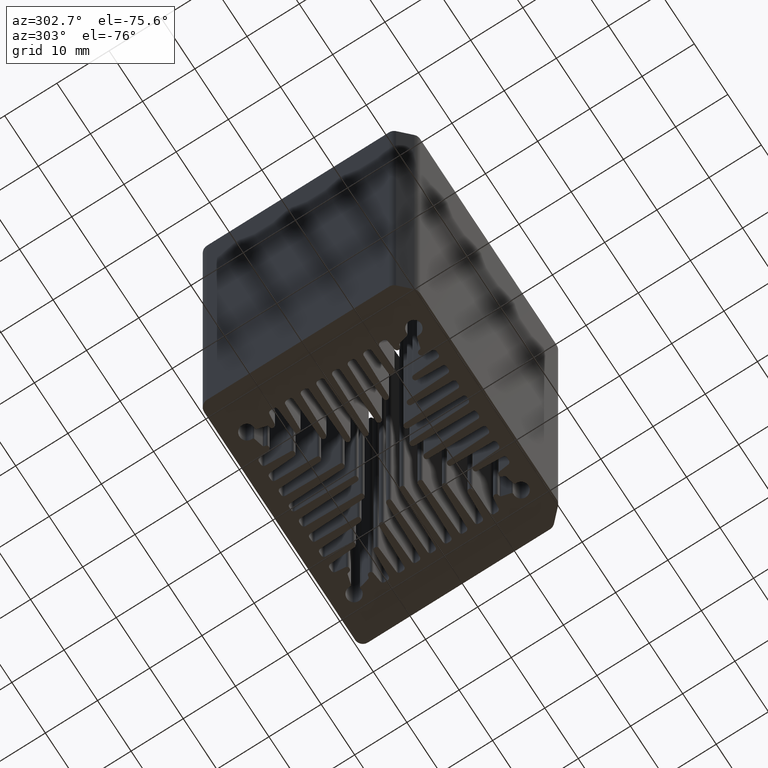
[diagram: clean part render]
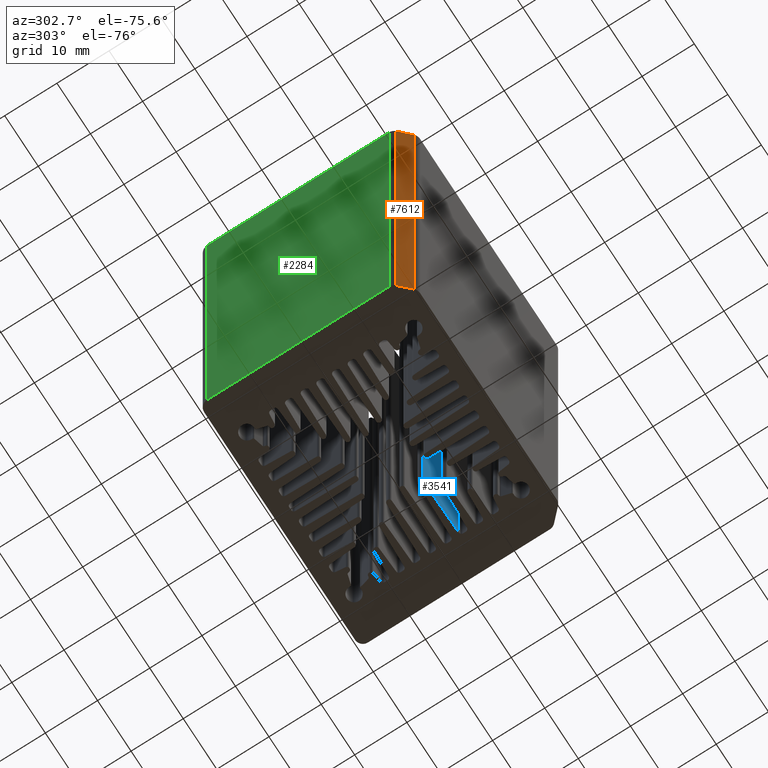
[diagram: same view with three faces highlighted in distinct colors, each labeled with its STEP entity id]
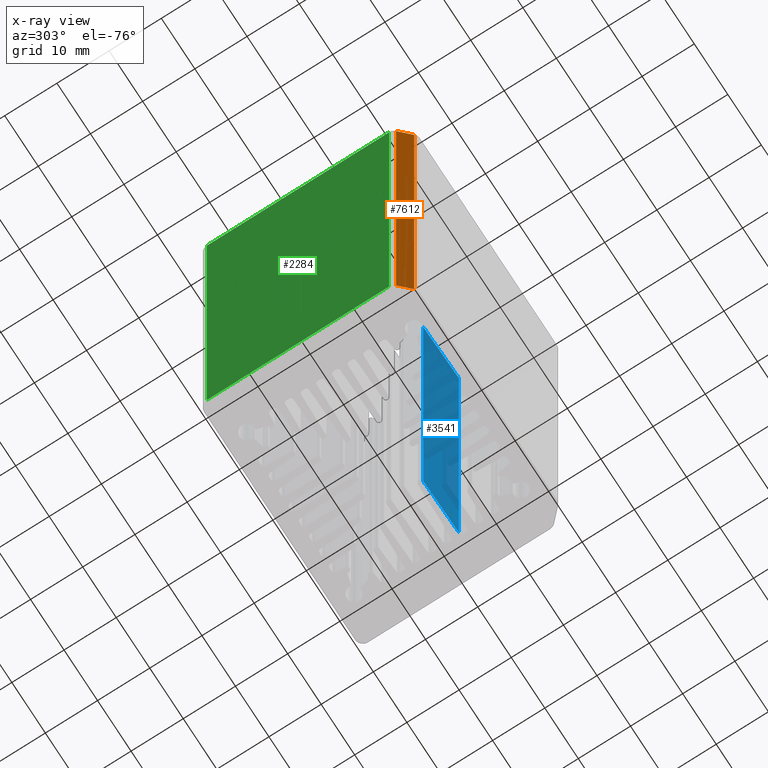
[diagram: x-ray of the same camera — body ghosted, the three highlighted faces saturated]
A machine part, auxiliary view with three faces highlighted in distinct colors.
The next image is the same camera in x-ray (body ghosted, the three faces saturated) — at least one of them is partly hidden behind the body in this view.
Their STEP definitions:

[orange] entity #7612 — the highlighted planar face has unit normal (0.7071, 0.7071, -0).
#319 = CARTESIAN_POINT ( 'NONE',  ( 500.3566337589029445, 690.2941642547954189, 100.0000000000000000 ) ) ;
#683 = VECTOR ( 'NONE', #7853, 1000.000000000000114 ) ;
#1219 = CARTESIAN_POINT ( 'NONE',  ( 498.2353139594253548, 692.4154846731078123, 100.0000000000000000 ) ) ;
#1271 = ORIENTED_EDGE ( 'NONE', *, *, #6582, .T. ) ;
#1556 = EDGE_LOOP ( 'NONE', ( #1271, #5997, #3060, #7929 ) ) ;
#1578 = FACE_OUTER_BOUND ( 'NONE', #1556, .T. ) ;
#1799 = VECTOR ( 'NONE', #8674, 1000.000000000000000 ) ;
#1834 = LINE ( 'NONE', #6057, #5011 ) ;
#1924 = EDGE_CURVE ( 'NONE', #2748, #4405, #1834, .T. ) ;
#1963 = CARTESIAN_POINT ( 'NONE',  ( 498.2353139594253548, 692.4154846731078123, 0.000000000000000000 ) ) ;
#2262 = CARTESIAN_POINT ( 'NONE',  ( 498.2353139594253548, 692.4154846731078123, 0.000000000000000000 ) ) ;
#2489 = PLANE ( 'NONE',  #7844 ) ;
#2748 = VERTEX_POINT ( 'NONE', #4436 ) ;
#3060 = ORIENTED_EDGE ( 'NONE', *, *, #3605, .F. ) ;
#3605 = EDGE_CURVE ( 'NONE', #2748, #7429, #7373, .T. ) ;
#3713 = CARTESIAN_POINT ( 'NONE',  ( 500.3566337589029445, 690.2941642547954189, 100.0000000000000000 ) ) ;
#4159 = CARTESIAN_POINT ( 'NONE',  ( 500.3566337589029445, 690.2941642547954189, 0.000000000000000000 ) ) ;
#4405 = VERTEX_POINT ( 'NONE', #1963 ) ;
#4436 = CARTESIAN_POINT ( 'NONE',  ( 498.2353139594253548, 692.4154846731078123, 100.0000000000000000 ) ) ;
#4587 = DIRECTION ( 'NONE',  ( 0.7071066780474017932, -0.7071068843256781422, 0.000000000000000000 ) ) ;
#4650 = DIRECTION ( 'NONE',  ( -0.000000000000000000, -0.000000000000000000, -1.000000000000000000 ) ) ;
#5011 = VECTOR ( 'NONE', #4650, 1000.000000000000000 ) ;
#5035 = CARTESIAN_POINT ( 'NONE',  ( 498.2353139594253548, 692.4154846731078123, 100.0000000000000000 ) ) ;
#5974 = DIRECTION ( 'NONE',  ( -0.7071066780474017932, 0.7071068843256781422, 0.000000000000000000 ) ) ;
#5997 = ORIENTED_EDGE ( 'NONE', *, *, #7035, .F. ) ;
#6057 = CARTESIAN_POINT ( 'NONE',  ( 498.2353139594253548, 692.4154846731078123, 100.0000000000000000 ) ) ;
#6582 = EDGE_CURVE ( 'NONE', #4405, #9068, #8729, .T. ) ;
#6606 = LINE ( 'NONE', #319, #1799 ) ;
#7035 = EDGE_CURVE ( 'NONE', #7429, #9068, #6606, .T. ) ;
#7081 = VECTOR ( 'NONE', #4587, 1000.000000000000114 ) ;
#7373 = LINE ( 'NONE', #1219, #7081 ) ;
#7429 = VERTEX_POINT ( 'NONE', #3713 ) ;
#7612 = ADVANCED_FACE ( 'NONE', ( #1578 ), #2489, .F. ) ;
#7844 = AXIS2_PLACEMENT_3D ( 'NONE', #5035, #8861, #5974 ) ;
#7853 = DIRECTION ( 'NONE',  ( 0.7071066780474017932, -0.7071068843256781422, 0.000000000000000000 ) ) ;
#7929 = ORIENTED_EDGE ( 'NONE', *, *, #1924, .T. ) ;
#8674 = DIRECTION ( 'NONE',  ( -0.000000000000000000, -0.000000000000000000, -1.000000000000000000 ) ) ;
#8729 = LINE ( 'NONE', #2262, #683 ) ;
#8861 = DIRECTION ( 'NONE',  ( 0.7071068843256781422, 0.7071066780474017932, -0.000000000000000000 ) ) ;
#9068 = VERTEX_POINT ( 'NONE', #4159 ) ;

[blue] entity #3541 — the highlighted planar face has unit normal (-0.0232, -0.9997, 0).
#666 = ORIENTED_EDGE ( 'NONE', *, *, #2978, .F. ) ;
#687 = CARTESIAN_POINT ( 'NONE',  ( 528.0180926985538008, 706.3549578145843952, 100.0000000000000000 ) ) ;
#814 = CARTESIAN_POINT ( 'NONE',  ( 528.0180926985538008, 706.3549578145843952, 100.0000000000000000 ) ) ;
#856 = VERTEX_POINT ( 'NONE', #1430 ) ;
#1216 = EDGE_LOOP ( 'NONE', ( #1245, #666, #4204, #7205 ) ) ;
#1245 = ORIENTED_EDGE ( 'NONE', *, *, #2878, .F. ) ;
#1297 = LINE ( 'NONE', #9000, #3320 ) ;
#1408 = VERTEX_POINT ( 'NONE', #6556 ) ;
#1430 = CARTESIAN_POINT ( 'NONE',  ( 538.3075767525135689, 706.1161586681045037, 0.000000000000000000 ) ) ;
#1684 = DIRECTION ( 'NONE',  ( 0.9997308013032757401, -0.02320183021897528897, 0.000000000000000000 ) ) ;
#2020 = CARTESIAN_POINT ( 'NONE',  ( 528.0180926985538008, 706.3549578145843952, 0.000000000000000000 ) ) ;
#2630 = LINE ( 'NONE', #5425, #3085 ) ;
#2878 = EDGE_CURVE ( 'NONE', #856, #4285, #2630, .T. ) ;
#2978 = EDGE_CURVE ( 'NONE', #1408, #856, #7661, .T. ) ;
#3085 = VECTOR ( 'NONE', #4747, 1000.000000000000000 ) ;
#3320 = VECTOR ( 'NONE', #7585, 1000.000000000000000 ) ;
#3528 = VECTOR ( 'NONE', #4982, 1000.000000000000000 ) ;
#3541 = ADVANCED_FACE ( 'NONE', ( #7926 ), #5729, .T. ) ;
#3627 = DIRECTION ( 'NONE',  ( -0.02320183021897528897, -0.9997308013032757401, 0.000000000000000000 ) ) ;
#4204 = ORIENTED_EDGE ( 'NONE', *, *, #8195, .T. ) ;
#4285 = VERTEX_POINT ( 'NONE', #2020 ) ;
#4747 = DIRECTION ( 'NONE',  ( -0.9997308013032757401, 0.02320183021897528897, -0.000000000000000000 ) ) ;
#4982 = DIRECTION ( 'NONE',  ( -0.000000000000000000, -0.000000000000000000, -1.000000000000000000 ) ) ;
#5425 = CARTESIAN_POINT ( 'NONE',  ( 528.0180926985538008, 706.3549578145843952, 0.000000000000000000 ) ) ;
#5555 = CARTESIAN_POINT ( 'NONE',  ( 538.3075767525135689, 706.1161586681045037, 100.0000000000000000 ) ) ;
#5729 = PLANE ( 'NONE',  #5773 ) ;
#5773 = AXIS2_PLACEMENT_3D ( 'NONE', #814, #3627, #1684 ) ;
#5923 = CARTESIAN_POINT ( 'NONE',  ( 528.0180926985538008, 706.3549578145843952, 100.0000000000000000 ) ) ;
#6233 = LINE ( 'NONE', #687, #8150 ) ;
#6556 = CARTESIAN_POINT ( 'NONE',  ( 538.3075767525135689, 706.1161586681045037, 100.0000000000000000 ) ) ;
#7205 = ORIENTED_EDGE ( 'NONE', *, *, #7801, .T. ) ;
#7575 = DIRECTION ( 'NONE',  ( -0.9997308013032757401, 0.02320183021897528897, -0.000000000000000000 ) ) ;
#7585 = DIRECTION ( 'NONE',  ( -0.000000000000000000, -0.000000000000000000, -1.000000000000000000 ) ) ;
#7661 = LINE ( 'NONE', #5555, #3528 ) ;
#7734 = VERTEX_POINT ( 'NONE', #5923 ) ;
#7801 = EDGE_CURVE ( 'NONE', #7734, #4285, #1297, .T. ) ;
#7926 = FACE_OUTER_BOUND ( 'NONE', #1216, .T. ) ;
#8150 = VECTOR ( 'NONE', #7575, 1000.000000000000000 ) ;
#8195 = EDGE_CURVE ( 'NONE', #1408, #7734, #6233, .T. ) ;
#9000 = CARTESIAN_POINT ( 'NONE',  ( 528.0180926985538008, 706.3549578145843952, 100.0000000000000000 ) ) ;

[green] entity #2284 — the highlighted planar face has unit normal (1, -0, 0).
#56 = EDGE_CURVE ( 'NONE', #5829, #5399, #7093, .T. ) ;
#575 = DIRECTION ( 'NONE',  ( -1.587560453694714769E-08, -0.9999999999999998890, 0.000000000000000000 ) ) ;
#749 = DIRECTION ( 'NONE',  ( -1.587560453694714769E-08, -0.9999999999999998890, 0.000000000000000000 ) ) ;
#803 = CARTESIAN_POINT ( 'NONE',  ( 497.7959742859137009, 693.4761447139923121, 100.0000000000000000 ) ) ;
#834 = VECTOR ( 'NONE', #8977, 1000.000000000000000 ) ;
#924 = VECTOR ( 'NONE', #575, 1000.000000000000114 ) ;
#1948 = ORIENTED_EDGE ( 'NONE', *, *, #2516, .F. ) ;
#2141 = VERTEX_POINT ( 'NONE', #5623 ) ;
#2206 = VECTOR ( 'NONE', #749, 1000.000000000000114 ) ;
#2284 = ADVANCED_FACE ( 'NONE', ( #3191 ), #2504, .F. ) ;
#2324 = ORIENTED_EDGE ( 'NONE', *, *, #8586, .T. ) ;
#2504 = PLANE ( 'NONE',  #7906 ) ;
#2516 = EDGE_CURVE ( 'NONE', #2141, #5829, #2812, .T. ) ;
#2812 = LINE ( 'NONE', #3596, #2206 ) ;
#3065 = CARTESIAN_POINT ( 'NONE',  ( 497.7959742859137009, 693.4761447139923121, 100.0000000000000000 ) ) ;
#3191 = FACE_OUTER_BOUND ( 'NONE', #6031, .T. ) ;
#3518 = CARTESIAN_POINT ( 'NONE',  ( 497.7959748396338568, 728.3548243899882664, 100.0000000000000000 ) ) ;
#3596 = CARTESIAN_POINT ( 'NONE',  ( 497.7959748396338568, 728.3548243899882664, 100.0000000000000000 ) ) ;
#3701 = EDGE_CURVE ( 'NONE', #7314, #5399, #5319, .T. ) ;
#3897 = VECTOR ( 'NONE', #5815, 1000.000000000000000 ) ;
#4271 = CARTESIAN_POINT ( 'NONE',  ( 497.7959748396338568, 728.3548243899882664, 0.000000000000000000 ) ) ;
#4578 = CARTESIAN_POINT ( 'NONE',  ( 497.7959748396338568, 728.3548243899882664, 100.0000000000000000 ) ) ;
#4692 = ORIENTED_EDGE ( 'NONE', *, *, #3701, .T. ) ;
#5200 = ORIENTED_EDGE ( 'NONE', *, *, #56, .F. ) ;
#5319 = LINE ( 'NONE', #8101, #924 ) ;
#5399 = VERTEX_POINT ( 'NONE', #8539 ) ;
#5623 = CARTESIAN_POINT ( 'NONE',  ( 497.7959748396338568, 728.3548243899882664, 100.0000000000000000 ) ) ;
#5815 = DIRECTION ( 'NONE',  ( -0.000000000000000000, -0.000000000000000000, -1.000000000000000000 ) ) ;
#5829 = VERTEX_POINT ( 'NONE', #3065 ) ;
#6031 = EDGE_LOOP ( 'NONE', ( #4692, #5200, #1948, #2324 ) ) ;
#7093 = LINE ( 'NONE', #803, #3897 ) ;
#7314 = VERTEX_POINT ( 'NONE', #4271 ) ;
#7363 = DIRECTION ( 'NONE',  ( 0.9999999999999998890, -1.587560453694714769E-08, 0.000000000000000000 ) ) ;
#7564 = LINE ( 'NONE', #3518, #834 ) ;
#7906 = AXIS2_PLACEMENT_3D ( 'NONE', #4578, #7363, #8696 ) ;
#8101 = CARTESIAN_POINT ( 'NONE',  ( 497.7959748396338568, 728.3548243899882664, 0.000000000000000000 ) ) ;
#8539 = CARTESIAN_POINT ( 'NONE',  ( 497.7959742859137009, 693.4761447139923121, 0.000000000000000000 ) ) ;
#8586 = EDGE_CURVE ( 'NONE', #2141, #7314, #7564, .T. ) ;
#8696 = DIRECTION ( 'NONE',  ( 1.587560453694714769E-08, 0.9999999999999998890, 0.000000000000000000 ) ) ;
#8977 = DIRECTION ( 'NONE',  ( -0.000000000000000000, -0.000000000000000000, -1.000000000000000000 ) ) ;